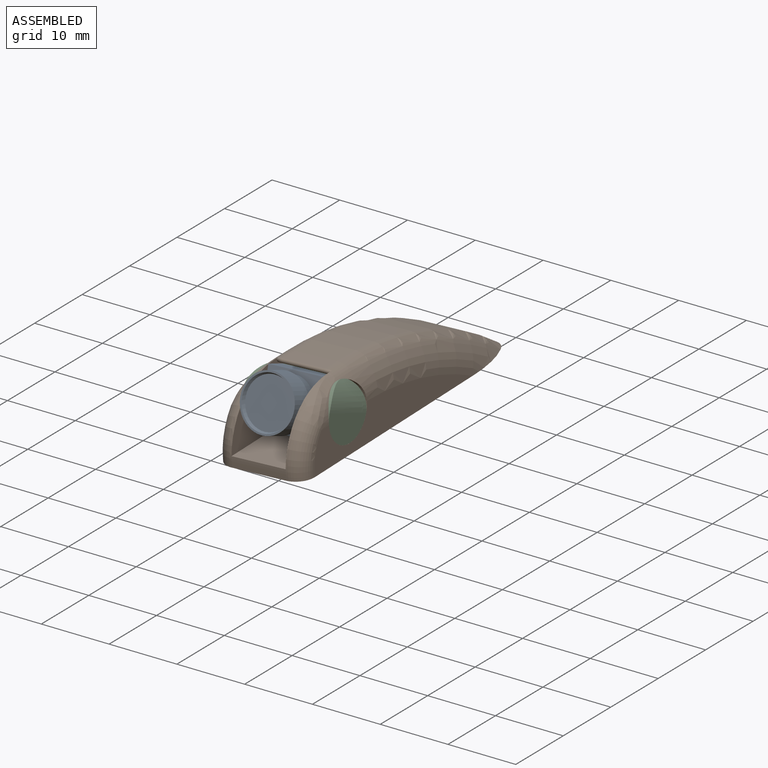
[diagram: assembled view]
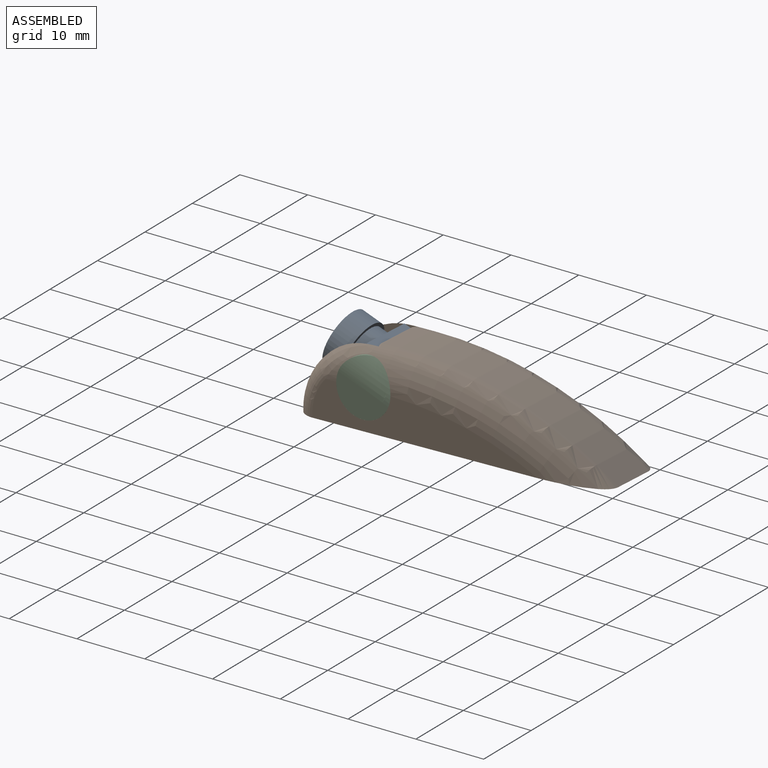
[diagram: assembled view, second angle]
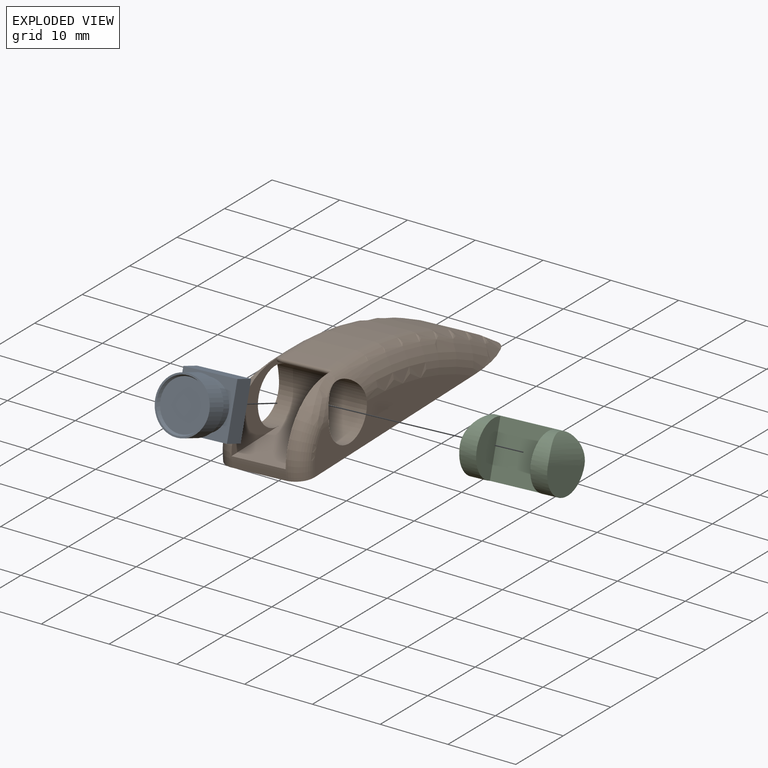
[diagram: exploded view]
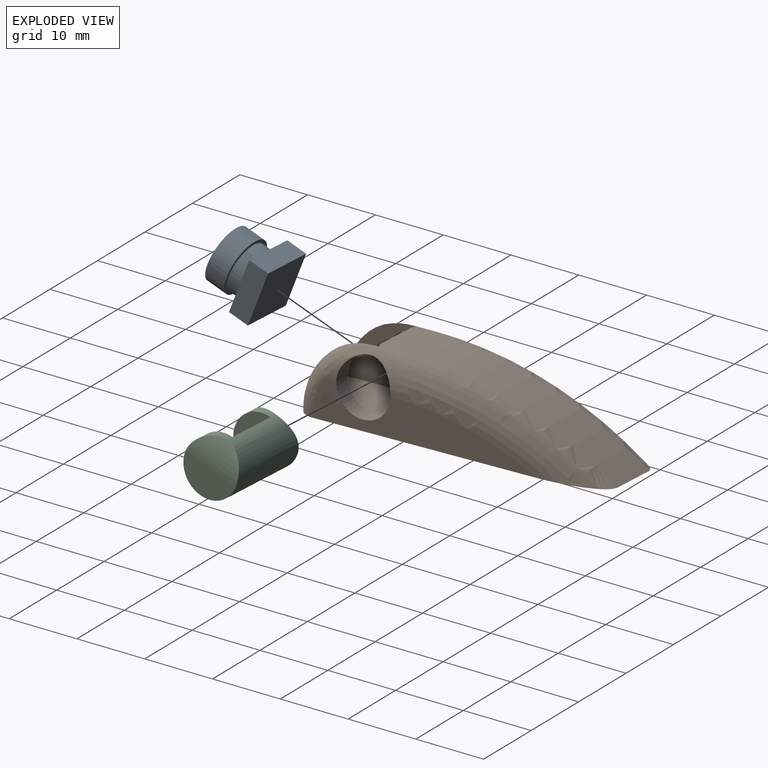
[diagram: exploded view, second angle]
ASSEMBLY  parts=3 mates=2
PART A: 12 faces, bbox 8x8x8 mm
  f0: plane 8x3mm, normal (1,0,0), area 24mm2, adj f1,f3,f4,f5
  f1: plane 8x3mm, normal (0,0,1), area 24mm2, adj f0,f2,f4,f5
  f2: plane 8x3mm, normal (-1,0,0), area 24mm2, adj f1,f3,f4,f5
  f3: plane 8x3mm, normal (0,0,-1), area 24mm2, adj f0,f2,f4,f5
  f4: plane 8x8mm, normal (0,-1,0), area 25.5mm2, adj f0,f1,f2,f3,f6
  f5: plane 8x8mm, normal (0,1,0), area 64mm2, adj f0,f1,f2,f3
  f6: cylinder r=3.5mm len=7mm, axis (0,1,0), area 44mm2, adj f4,f9
  f7: cylinder r=4mm len=8mm, axis (0,1,0), area 75.4mm2, adj f8,f9
  f8: plane 8x8mm, normal (0,-1,0), area 6.1mm2, adj f7,f11
  f9: plane 8x8mm, normal (0,1,0), area 11.8mm2, adj f6,f7
  f10: plane 7.1x7.1mm, normal (0,-1,0), area 39.6mm2, adj f11
  f11: cone r=3.55mm half-angle=21.8deg, axis (0,-1,0), area 12.4mm2, adj f8,f10
PART B: 29 faces, bbox 13.9x49.4x22.7 mm
  f0: bspline ~8.96x6.25mm, area 19.6mm2, adj f11,f16,f22,f23
  f1: cylinder r=4mm len=13mm, axis (1,0,0), area 202.4mm2, adj f2,f5,f6,f7,f9,f10,f11,f15
  f2: plane 9.95x8mm, normal (0,0,1), area 79.6mm2, adj f1,f4,f15,f16
  f3: bspline ~10.3x6.25mm, area 19.6mm2, adj f9,f15,f18,f19
  f4: cylinder r=10mm len=8mm, axis (1,0,0), area 8mm2, adj f2,f13,f19,f23
  f5: plane 33.3x5.5mm, normal (-1,0,0), area 114.2mm2, adj f1,f7,f9,f12,f19,f20
  f6: plane 33.3x5.5mm, normal (1,0,0), area 114.2mm2, adj f1,f10,f11,f12,f23,f24
  f7: torus R=50mm, axis (-1,0,0), area 122mm2, adj f1,f5,f9,f12,f17
  f8: plane 6.25x2.54mm, normal (0,0,1), area 15.9mm2, adj f14,f18,f22,f27
  f9: cylinder r=6.5mm len=8.59mm, axis (0,1,0), area 5.1mm2, adj f1,f3,f5,f7,f18
  f10: torus R=50mm, axis (-1,0,0), area 122mm2, adj f1,f6,f11,f12,f21
  f11: cylinder r=6.5mm len=8.59mm, axis (0,1,0), area 5.1mm2, adj f0,f1,f6,f10,f22
  f12: plane 45.9x13.58mm, normal (0,0,-1), area 573.2mm2, adj f5,f6,f7,f10,f13,f14,f17,f20
  f13: plane 8x0.5mm, normal (0,-1,0), area 4mm2, adj f4,f12,f20,f24
  f14: cylinder r=55mm len=32.32mm, axis (-1,0,0), area 215.8mm2, adj f8,f12,f17,f21
  f15: plane 12.35x9.24mm, normal (1,0,0), area 43.5mm2, adj f1,f2,f3,f18,f19,f25,f28
  f16: plane 12.35x9.24mm, normal (-1,0,0), area 43.5mm2, adj f0,f1,f2,f22,f23,f25,f26
  f17: torus R=52.5mm, axis (-1,0,0), area 75.4mm2, adj f7,f12,f14,f18
  f18: cylinder r=2.5mm len=3mm, axis (0,1,0), area 6.2mm2, adj f3,f8,f9,f15,f17,f28
  f19: torus R=7.5mm, axis (-1,0,0), area 26.1mm2, adj f3,f4,f5,f15,f20
  f20: cylinder r=2.5mm len=2.5mm, axis (0,0,1), area 2mm2, adj f5,f12,f13,f19
  f21: torus R=52.5mm, axis (1,0,0), area 75.4mm2, adj f10,f12,f14,f22
  f22: cylinder r=2.5mm len=3mm, axis (0,1,0), area 6.2mm2, adj f0,f8,f11,f16,f21,f26
  f23: torus R=7.5mm, axis (1,0,0), area 26.1mm2, adj f0,f4,f6,f16,f24
  f24: cylinder r=2.5mm len=2.5mm, axis (0,0,-1), area 2mm2, adj f6,f12,f13,f23
  f25: plane 8x1.69mm, normal (0,-0.5,-0.87), area 15.4mm2, adj f1,f15,f16,f26,f27,f28
  f26: bspline ~2.54x1.71mm, area 0.7mm2, adj f16,f22,f25,f27
  f27: cylinder r=0.3mm len=6.25mm, axis (1,0,0), area 4.9mm2, adj f8,f25,f26,f28
  f28: bspline ~1.99x1.71mm, area 0.7mm2, adj f15,f18,f25,f27
PART C: 10 faces, bbox 13x122.3x122.3 mm
  f0: plane 8x4mm, normal (-1,0,0), area 25.1mm2, adj f2,f9
  f1: plane 8x4mm, normal (1,0,0), area 25.1mm2, adj f2,f9
  f2: cylinder r=4mm len=13mm, axis (1,0,0), area 207.3mm2, adj f0,f1,f3,f4,f5,f6,f7,f8
  f3: cylinder r=6.5mm len=7mm, axis (0,1,0), area 24.7mm2, adj f2,f4,f5
  f4: plane 8x4mm, normal (1,0,0), area 25.1mm2, adj f2,f3,f5
  f5: torus R=50mm, axis (-1,0,0), area 1.8mm2, adj f2,f3,f4
  f6: torus R=50mm, axis (-1,0,0), area 11971.1mm2, adj f2,f7,f8
  f7: plane 8x4mm, normal (-1,0,0), area 25.1mm2, adj f2,f6,f8
  f8: cylinder r=6.5mm len=7mm, axis (0,1,0), area 24.7mm2, adj f2,f6,f7
  f9: plane 8x8mm, normal (0,-1,0), area 64mm2, adj f0,f1,f2
PLACE A rot(axis=(-0.99,-0.14,-0.03),20.2deg) t=(18.91,-0.2,-1.76)mm
PLACE B rot(axis=(0.45,-0.89,-0.01),3.1deg) t=(18.85,-0.02,-0.66)mm
PLACE C rot(axis=(-0.99,-0.14,-0.03),20.2deg) t=(18.91,-0.2,-1.76)mm
MATE fastened A.f6 <-> C.f3  axis (0.02,0.94,-0.34) through (18.85,-3.01,-0.74)mm
MATE revolute B.f1 <-> C.f2  axis (1,0,0.05) through (14.86,-3.01,-0.93)mm
